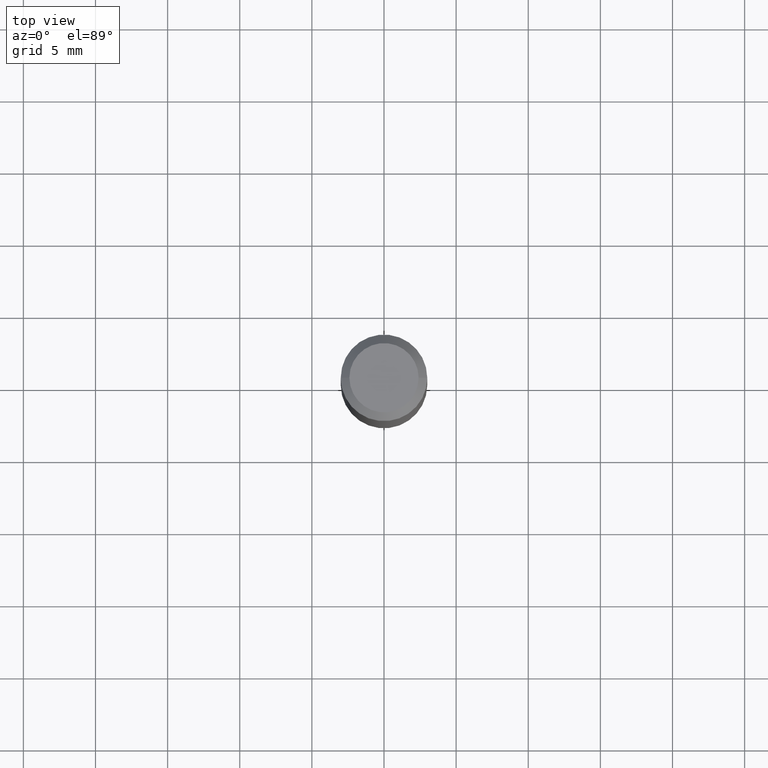
[diagram: clean part render]
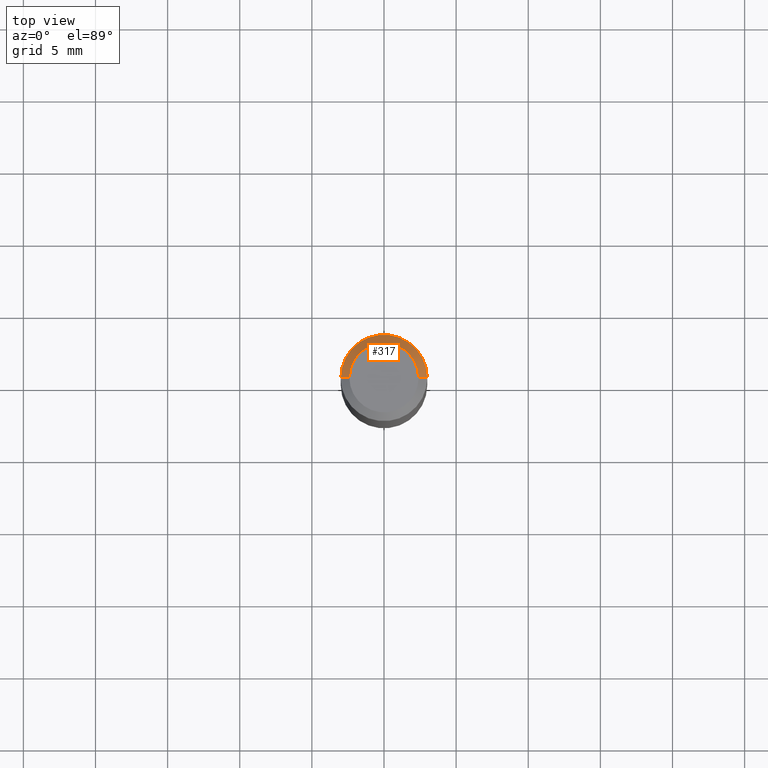
[diagram: same view with one face highlighted and labeled with its STEP entity id]
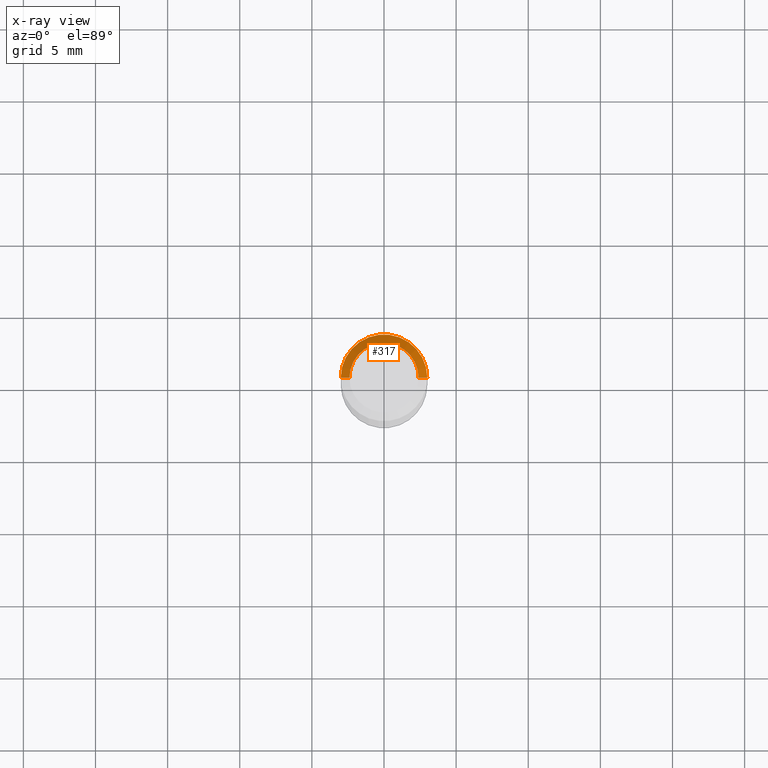
[diagram: x-ray of the same camera — body ghosted, the highlighted face saturated]
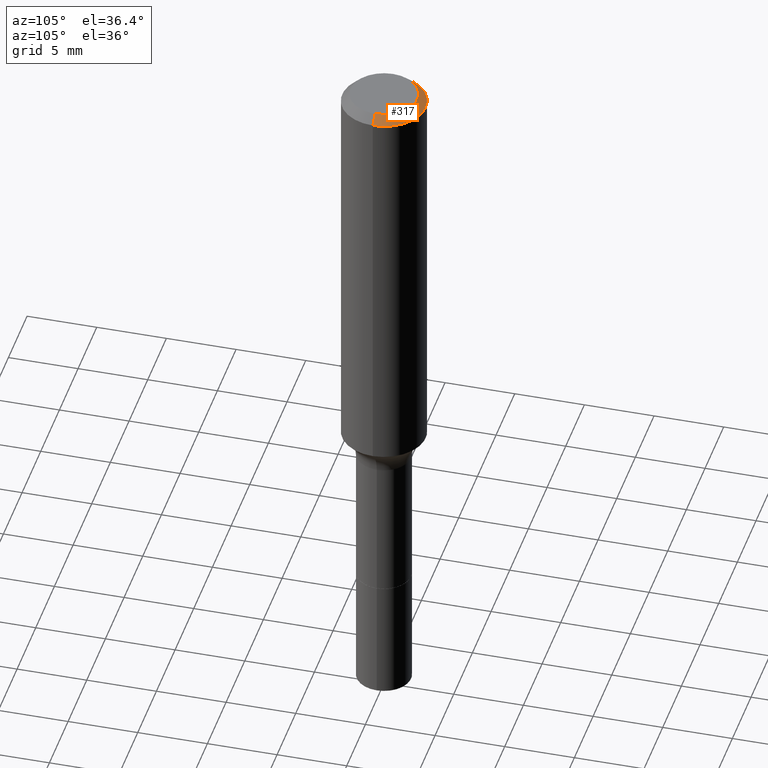
[diagram: same view with one face highlighted and labeled with its STEP entity id]
A machine part, top view. The second image highlights one B-rep face of the part: STEP entity #317.
The next image is the same camera in x-ray: the body ghosted, the highlighted face saturated — about 0% of this face is hidden behind the body in this view.
A second angle (auxiliary view) of the same face is appended — the face is thin or edge-on in the first view.
In plain terms, the highlighted conical surface has half-angle 45 deg.
Its self-contained STEP definition (entity closure, byte-faithful):
#20 = CONICAL_SURFACE ( 'NONE', #308, 0.1180999999999999966, 0.7853981633974461696 ) ;
#31 = VECTOR ( 'NONE', #443, 39.37007874015748143 ) ;
#36 = DIRECTION ( 'NONE',  ( -2.445468806185136597E-29, 3.491481338843145583E-15, 1.000000000000000000 ) ) ;
#41 = ORIENTED_EDGE ( 'NONE', *, *, #229, .F. ) ;
#66 = ORIENTED_EDGE ( 'NONE', *, *, #474, .T. ) ;
#84 = CARTESIAN_POINT ( 'NONE',  ( 5.776197320209328408E-31, -8.246878922347560526E-17, -0.02362000000000014435 ) ) ;
#97 = CARTESIAN_POINT ( 'NONE',  ( 0.09447999999999998066, -7.704367267948738690E-16, -3.085620075131172158E-17 ) ) ;
#110 = AXIS2_PLACEMENT_3D ( 'NONE', #388, #36, #457 ) ;
#120 = LINE ( 'NONE', #406, #31 ) ;
#127 = DIRECTION ( 'NONE',  ( 2.445468806185136597E-29, -3.491481338843145583E-15, -1.000000000000000000 ) ) ;
#130 = VERTEX_POINT ( 'NONE', #435 ) ;
#133 = CIRCLE ( 'NONE', #441, 0.09447999999999998066 ) ;
#134 = ORIENTED_EDGE ( 'NONE', *, *, #401, .T. ) ;
#135 = ORIENTED_EDGE ( 'NONE', *, *, #271, .F. ) ;
#137 = EDGE_LOOP ( 'NONE', ( #41, #134, #66, #135 ) ) ;
#141 = LINE ( 'NONE', #463, #490 ) ;
#157 = CARTESIAN_POINT ( 'NONE',  ( 7.545787641473140628E-46, -1.077338491108201769E-31, -3.085620075131671975E-17 ) ) ;
#177 = CARTESIAN_POINT ( 'NONE',  ( -0.09447999999999998066, 7.009847083995354710E-16, -3.085620075132147757E-17 ) ) ;
#229 = EDGE_CURVE ( 'NONE', #482, #405, #133, .T. ) ;
#271 = EDGE_CURVE ( 'NONE', #405, #470, #120, .T. ) ;
#275 = DIRECTION ( 'NONE',  ( 1.000000000000000000, -6.982962677686267499E-15, 4.875432709231658792E-29 ) ) ;
#308 = AXIS2_PLACEMENT_3D ( 'NONE', #84, #127, #402 ) ;
#317 = ADVANCED_FACE ( 'NONE', ( #442 ), #20, .T. ) ;
#328 = CIRCLE ( 'NONE', #110, 0.1180999999999999966 ) ;
#378 = DIRECTION ( 'NONE',  ( 0.7071067811865460184, -7.319954787623251312E-15, -0.7071067811865490160 ) ) ;
#388 = CARTESIAN_POINT ( 'NONE',  ( 5.776197320209328408E-31, -8.246878922347560526E-17, -0.02362000000000014435 ) ) ;
#401 = EDGE_CURVE ( 'NONE', #482, #130, #141, .T. ) ;
#402 = DIRECTION ( 'NONE',  ( -1.000000000000000000, 6.982962677686266711E-15, 0.000000000000000000 ) ) ;
#405 = VERTEX_POINT ( 'NONE', #177 ) ;
#406 = CARTESIAN_POINT ( 'NONE',  ( -0.1180999999999999966, 7.422191030112725094E-16, -0.02362000000000014435 ) ) ;
#435 = CARTESIAN_POINT ( 'NONE',  ( 0.1180999999999999966, -9.071566814582237199E-16, -0.02362000000000014435 ) ) ;
#441 = AXIS2_PLACEMENT_3D ( 'NONE', #157, #478, #275 ) ;
#442 = FACE_OUTER_BOUND ( 'NONE', #137, .T. ) ;
#443 = DIRECTION ( 'NONE',  ( -0.7071067811865460184, 2.468850131082241283E-15, -0.7071067811865490160 ) ) ;
#457 = DIRECTION ( 'NONE',  ( 1.000000000000000000, -6.982962677686266711E-15, 0.000000000000000000 ) ) ;
#463 = CARTESIAN_POINT ( 'NONE',  ( 0.1180999999999999966, -8.926936027602933910E-16, -0.02362000000000014435 ) ) ;
#470 = VERTEX_POINT ( 'NONE', #472 ) ;
#472 = CARTESIAN_POINT ( 'NONE',  ( -0.1180999999999999966, -1.200336256074400134E-15, -0.02362000000000014435 ) ) ;
#474 = EDGE_CURVE ( 'NONE', #130, #470, #328, .T. ) ;
#478 = DIRECTION ( 'NONE',  ( -2.445468806185136597E-29, 3.491481338843145583E-15, 1.000000000000000000 ) ) ;
#482 = VERTEX_POINT ( 'NONE', #97 ) ;
#490 = VECTOR ( 'NONE', #378, 39.37007874015748143 ) ;